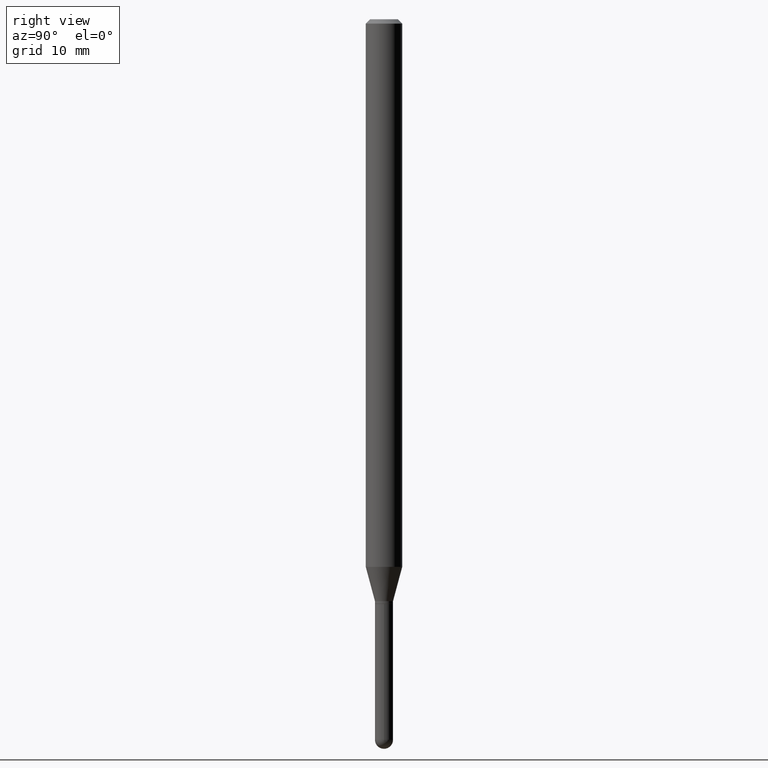
[diagram: clean part render]
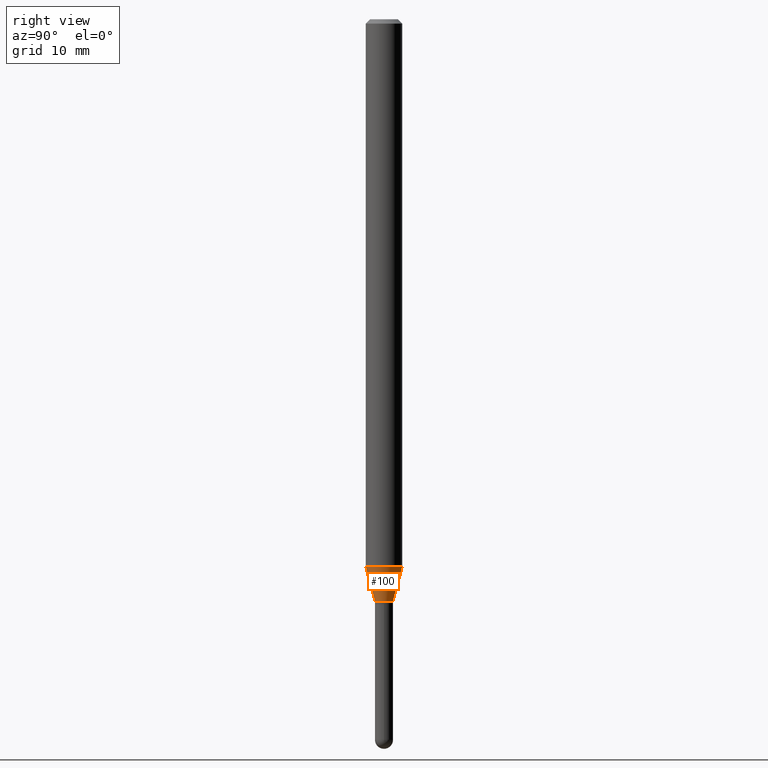
[diagram: same view with one face highlighted and labeled with its STEP entity id]
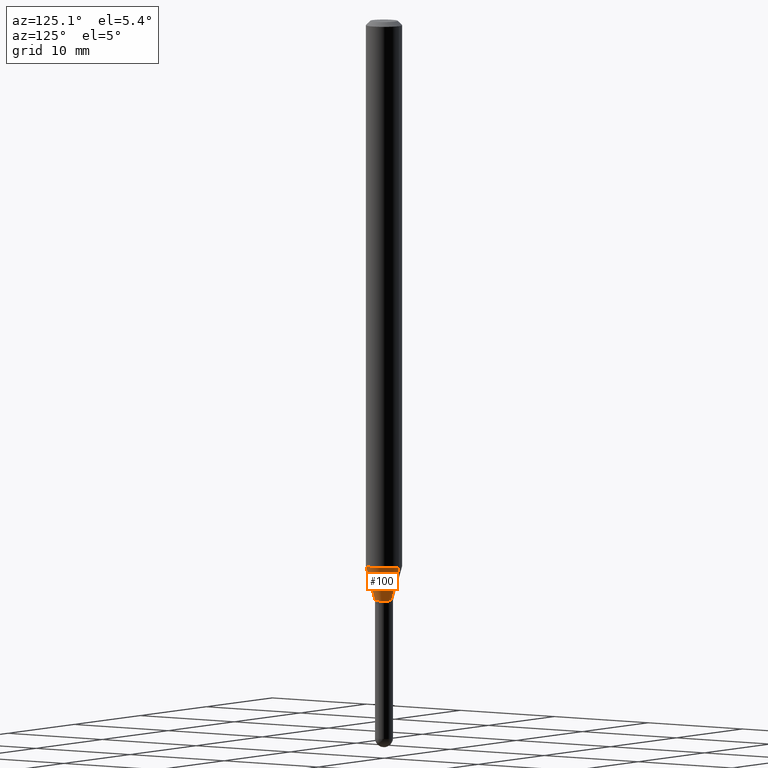
[diagram: same view with one face highlighted and labeled with its STEP entity id]
A machine part, right view. The second image highlights one B-rep face of the part: STEP entity #100.
A second angle (auxiliary view) of the same face is appended — the face is thin or edge-on in the first view.
In plain terms, the highlighted conical surface has half-angle 15 deg.
Its self-contained STEP definition (entity closure, byte-faithful):
#16 = CARTESIAN_POINT ( 'NONE',  ( 4.588745114027310997E-29, -6.551601533170026428E-15, -1.876440399561581485 ) ) ;
#38 = VERTEX_POINT ( 'NONE', #504 ) ;
#59 = CARTESIAN_POINT ( 'NONE',  ( 2.202682480856811734E-16, 0.03099999999999323436, -1.993999999999999995 ) ) ;
#76 = EDGE_LOOP ( 'NONE', ( #276, #435, #234, #194 ) ) ;
#88 = CARTESIAN_POINT ( 'NONE',  ( 3.321787289678948580E-16, 0.03099999999999323436, -1.993999999999999995 ) ) ;
#100 = ADVANCED_FACE ( 'NONE', ( #325 ), #345, .T. ) ;
#136 = LINE ( 'NONE', #304, #179 ) ;
#147 = EDGE_CURVE ( 'NONE', #274, #38, #395, .T. ) ;
#179 = VECTOR ( 'NONE', #463, 39.37007874015749564 ) ;
#194 = ORIENTED_EDGE ( 'NONE', *, *, #265, .F. ) ;
#203 = DIRECTION ( 'NONE',  ( -2.445452099144444878E-29, 3.491505264276321759E-15, 1.000000000000000000 ) ) ;
#206 = CARTESIAN_POINT ( 'NONE',  ( -2.164718430082268516E-16, -0.03100000000000715725, -1.993999999999999995 ) ) ;
#212 = EDGE_CURVE ( 'NONE', #472, #38, #379, .T. ) ;
#213 = DIRECTION ( 'NONE',  ( 1.839019923739599526E-15, 0.2588190451025248473, 0.9659258262890670910 ) ) ;
#214 = DIRECTION ( 'NONE',  ( -2.445452099144444878E-29, 3.491505264276321759E-15, 1.000000000000000000 ) ) ;
#234 = ORIENTED_EDGE ( 'NONE', *, *, #147, .F. ) ;
#265 = EDGE_CURVE ( 'NONE', #425, #274, #136, .T. ) ;
#274 = VERTEX_POINT ( 'NONE', #470 ) ;
#276 = ORIENTED_EDGE ( 'NONE', *, *, #371, .T. ) ;
#288 = DIRECTION ( 'NONE',  ( -6.982962677686266711E-15, -1.000000000000000000, 0.000000000000000000 ) ) ;
#297 = CIRCLE ( 'NONE', #480, 0.03100000000000019407 ) ;
#304 = CARTESIAN_POINT ( 'NONE',  ( -2.164718430082268516E-16, -0.03100000000000715725, -1.993999999999999995 ) ) ;
#325 = FACE_OUTER_BOUND ( 'NONE', #76, .T. ) ;
#326 = CARTESIAN_POINT ( 'NONE',  ( 4.876231485694023880E-29, -6.962061496966986701E-15, -1.993999999999999995 ) ) ;
#329 = CARTESIAN_POINT ( 'NONE',  ( 4.876231485694023880E-29, -6.962061496966986701E-15, -1.993999999999999995 ) ) ;
#345 = CONICAL_SURFACE ( 'NONE', #411, 0.03100000000000019407, 0.2617993877991501850 ) ;
#359 = DIRECTION ( 'NONE',  ( -6.982962677686266711E-15, -1.000000000000000000, 0.000000000000000000 ) ) ;
#369 = DIRECTION ( 'NONE',  ( -2.445452099144444878E-29, 3.491505264276321759E-15, 1.000000000000000000 ) ) ;
#371 = EDGE_CURVE ( 'NONE', #425, #472, #297, .T. ) ;
#379 = LINE ( 'NONE', #59, #413 ) ;
#395 = CIRCLE ( 'NONE', #422, 0.06250000000000000000 ) ;
#411 = AXIS2_PLACEMENT_3D ( 'NONE', #326, #369, #288 ) ;
#413 = VECTOR ( 'NONE', #213, 39.37007874015748143 ) ;
#422 = AXIS2_PLACEMENT_3D ( 'NONE', #16, #214, #492 ) ;
#425 = VERTEX_POINT ( 'NONE', #206 ) ;
#435 = ORIENTED_EDGE ( 'NONE', *, *, #212, .T. ) ;
#463 = DIRECTION ( 'NONE',  ( -1.807323732225329350E-15, -0.2588190451025180194, 0.9659258262890689783 ) ) ;
#470 = CARTESIAN_POINT ( 'NONE',  ( -4.364351673553459155E-16, -0.06250000000000657807, -1.876440399561581263 ) ) ;
#472 = VERTEX_POINT ( 'NONE', #88 ) ;
#480 = AXIS2_PLACEMENT_3D ( 'NONE', #329, #203, #359 ) ;
#492 = DIRECTION ( 'NONE',  ( -6.982962677686265922E-15, -1.000000000000000000, 4.370956789862821150E-15 ) ) ;
#504 = CARTESIAN_POINT ( 'NONE',  ( 4.440892098501081729E-16, 0.06249999999999341499, -1.876440399561581707 ) ) ;